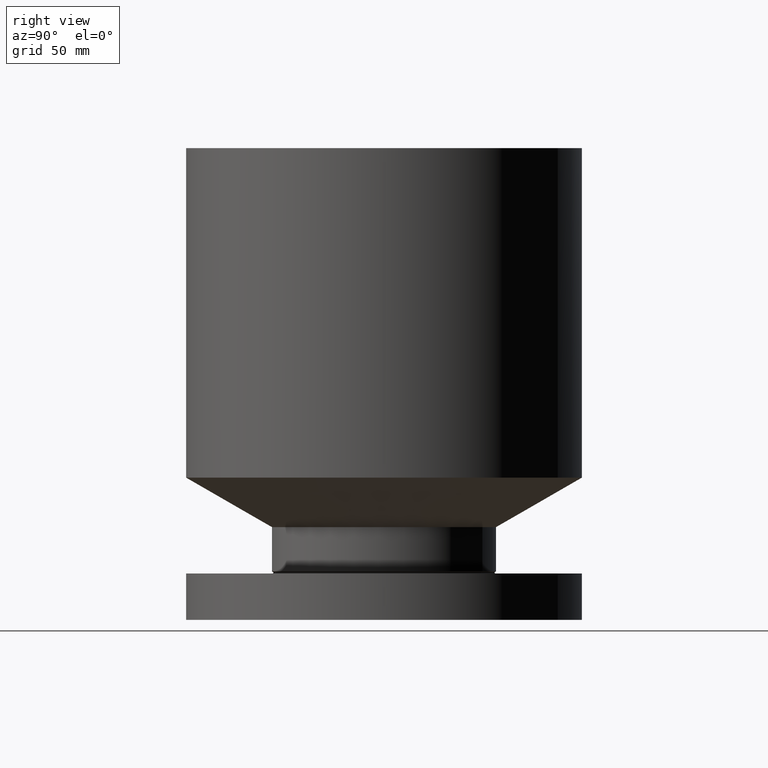
[diagram: clean part render]
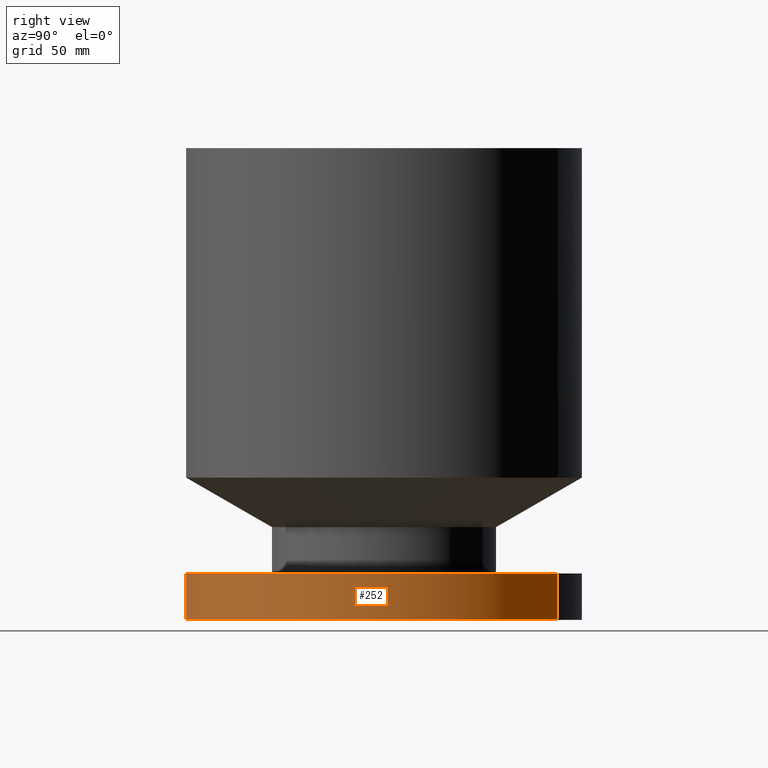
[diagram: same view with one face highlighted and labeled with its STEP entity id]
A machine part, right view. The second image highlights one B-rep face of the part: STEP entity #252.
In plain terms, the highlighted cylindrical surface (partial cylindrical patch) has radius 95.25 mm, axis along (0, 0, -1).
Its self-contained STEP definition (entity closure, byte-faithful):
#82=AXIS2_PLACEMENT_3D('Circle Axis2P3D',#80,#81,$) ;
#213=AXIS2_PLACEMENT_3D('Cylinder Axis2P3D',#210,#211,#212) ;
#243=AXIS2_PLACEMENT_3D('Circle Axis2P3D',#241,#242,$) ;
#80=CARTESIAN_POINT('Axis2P3D Location',(0.,0.,0.877500000004)) ;
#84=CARTESIAN_POINT('Vertex',(1.79784576977,3.2909346071,0.877500000004)) ;
#86=CARTESIAN_POINT('Vertex',(-1.79784576977,-3.2909346071,0.877500000004)) ;
#210=CARTESIAN_POINT('Axis2P3D Location',(0.,0.,4.43750000002)) ;
#219=CARTESIAN_POINT('Vertex',(-1.79784576977,-3.2909346071,1.1189649382E-015)) ;
#221=CARTESIAN_POINT('Vertex',(1.79784576977,3.2909346071,1.1189649382E-015)) ;
#224=CARTESIAN_POINT('Line Origine',(-1.79784576977,-3.2909346071,5.81659709374)) ;
#229=CARTESIAN_POINT('Line Origine',(1.79784576977,3.2909346071,5.81659709374)) ;
#241=CARTESIAN_POINT('Axis2P3D Location',(0.,0.,5.59482469102E-016)) ;
#81=DIRECTION('Axis2P3D Direction',(0.,0.,-0.0393700787402)) ;
#211=DIRECTION('Axis2P3D Direction',(0.,0.,-0.0393700787402)) ;
#212=DIRECTION('Axis2P3D XDirection',(-0.0188750212049,-0.0345504945626,0.)) ;
#225=DIRECTION('Vector Direction',(0.,0.,-0.0393700787402)) ;
#230=DIRECTION('Vector Direction',(0.,0.,-0.0393700787402)) ;
#242=DIRECTION('Axis2P3D Direction',(0.,0.,-0.0393700787402)) ;
#226=VECTOR('Line Direction',#225,0.0393700787402) ;
#231=VECTOR('Line Direction',#230,0.0393700787402) ;
#247=ORIENTED_EDGE('',*,*,#245,.F.) ;
#248=ORIENTED_EDGE('',*,*,#233,.T.) ;
#249=ORIENTED_EDGE('',*,*,#88,.T.) ;
#250=ORIENTED_EDGE('',*,*,#228,.F.) ;
#252=ADVANCED_FACE('PartBody',(#251),#214,.T.) ;
#83=CIRCLE('generated circle',#82,3.75000000002) ;
#244=CIRCLE('generated circle',#243,3.75000000002) ;
#214=CYLINDRICAL_SURFACE('generated cylinder',#213,3.75000000002) ;
#88=EDGE_CURVE('',#85,#87,#83,.T.) ;
#228=EDGE_CURVE('',#220,#87,#227,.F.) ;
#233=EDGE_CURVE('',#222,#85,#232,.F.) ;
#245=EDGE_CURVE('',#222,#220,#244,.T.) ;
#246=EDGE_LOOP('',(#247,#248,#249,#250)) ;
#251=FACE_OUTER_BOUND('',#246,.T.) ;
#227=LINE('Line',#224,#226) ;
#232=LINE('Line',#229,#231) ;
#85=VERTEX_POINT('',#84) ;
#87=VERTEX_POINT('',#86) ;
#220=VERTEX_POINT('',#219) ;
#222=VERTEX_POINT('',#221) ;